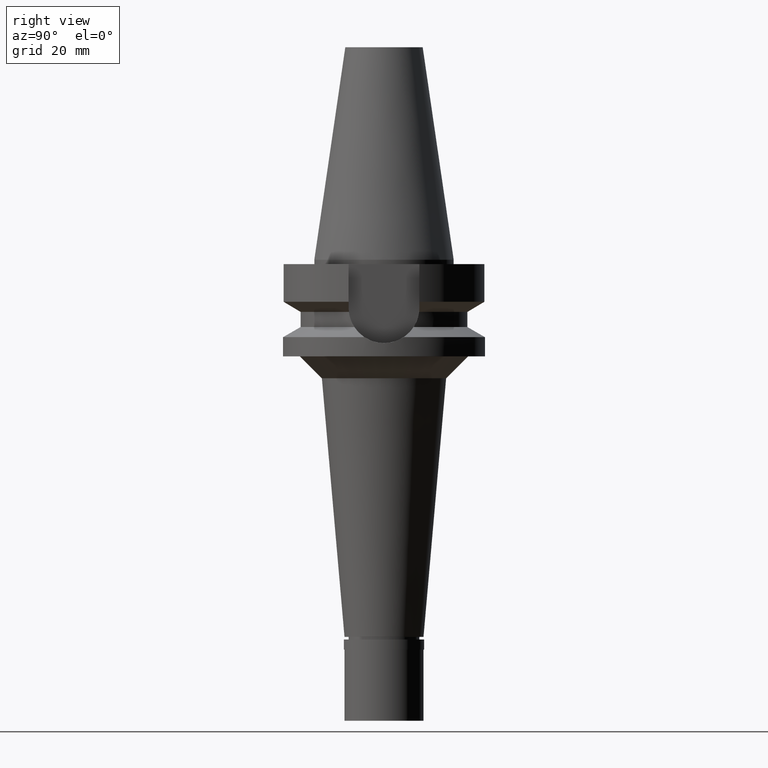
[diagram: clean part render]
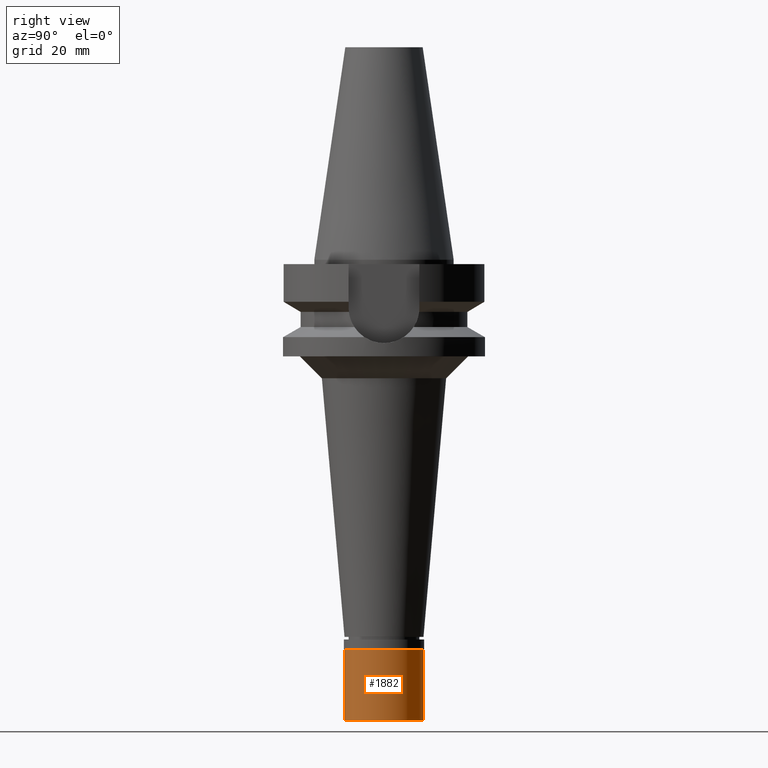
[diagram: same view with one face highlighted and labeled with its STEP entity id]
A machine part, right view. The second image highlights one B-rep face of the part: STEP entity #1882.
In plain terms, the highlighted cylindrical surface (partial cylindrical patch) has radius 9 mm, axis along (0, 0, 1).
Its self-contained STEP definition (entity closure, byte-faithful):
#181 = VERTEX_POINT ( 'NONE', #2691 ) ;
#248 = DIRECTION ( 'NONE',  ( 0.0000000000000000000, 0.0000000000000000000, 1.000000000000000000 ) ) ;
#386 = CARTESIAN_POINT ( 'NONE',  ( 0.0000000000000000000, 0.0000000000000000000, -2.299999999999999822 ) ) ;
#413 = CIRCLE ( 'NONE', #544, 9.000000000000000000 ) ;
#455 = AXIS2_PLACEMENT_3D ( 'NONE', #386, #2443, #2836 ) ;
#507 = ORIENTED_EDGE ( 'NONE', *, *, #2716, .F. ) ;
#544 = AXIS2_PLACEMENT_3D ( 'NONE', #2038, #248, #869 ) ;
#668 = LINE ( 'NONE', #1818, #1078 ) ;
#856 = EDGE_CURVE ( 'NONE', #1982, #181, #2348, .T. ) ;
#869 = DIRECTION ( 'NONE',  ( 0.0000000000000000000, -1.000000000000000000, 0.0000000000000000000 ) ) ;
#890 = ORIENTED_EDGE ( 'NONE', *, *, #1784, .T. ) ;
#1010 = CARTESIAN_POINT ( 'NONE',  ( 0.0000000000000000000, 9.000000000000000000, -2.299999999999999822 ) ) ;
#1040 = EDGE_CURVE ( 'NONE', #1958, #1982, #1256, .T. ) ;
#1055 = DIRECTION ( 'NONE',  ( 0.0000000000000000000, 0.0000000000000000000, 1.000000000000000000 ) ) ;
#1078 = VECTOR ( 'NONE', #1133, 1000.000000000000000 ) ;
#1103 = VERTEX_POINT ( 'NONE', #1184 ) ;
#1133 = DIRECTION ( 'NONE',  ( 0.0000000000000000000, 0.0000000000000000000, -1.000000000000000000 ) ) ;
#1182 = CARTESIAN_POINT ( 'NONE',  ( 0.0000000000000000000, -9.000000000000000000, -2.299999999999999822 ) ) ;
#1184 = CARTESIAN_POINT ( 'NONE',  ( 0.0000000000000000000, 9.000000000000000000, -18.50000000000000000 ) ) ;
#1256 = CIRCLE ( 'NONE', #455, 9.000000000000000000 ) ;
#1260 = AXIS2_PLACEMENT_3D ( 'NONE', #1275, #1055, #2447 ) ;
#1275 = CARTESIAN_POINT ( 'NONE',  ( 0.0000000000000000000, 0.0000000000000000000, -19.42500000000000071 ) ) ;
#1343 = ORIENTED_EDGE ( 'NONE', *, *, #1040, .T. ) ;
#1385 = DIRECTION ( 'NONE',  ( 0.0000000000000000000, 0.0000000000000000000, -1.000000000000000000 ) ) ;
#1439 = VECTOR ( 'NONE', #1385, 1000.000000000000000 ) ;
#1784 = EDGE_CURVE ( 'NONE', #181, #1103, #413, .T. ) ;
#1818 = CARTESIAN_POINT ( 'NONE',  ( 0.0000000000000000000, 9.000000000000000000, -2.299999999999999822 ) ) ;
#1882 = ADVANCED_FACE ( 'NONE', ( #2133 ), #1913, .T. ) ;
#1913 = CYLINDRICAL_SURFACE ( 'NONE', #1260, 9.000000000000000000 ) ;
#1948 = EDGE_LOOP ( 'NONE', ( #1343, #2962, #890, #507 ) ) ;
#1958 = VERTEX_POINT ( 'NONE', #1010 ) ;
#1982 = VERTEX_POINT ( 'NONE', #2603 ) ;
#2038 = CARTESIAN_POINT ( 'NONE',  ( 0.0000000000000000000, 0.0000000000000000000, -18.50000000000000000 ) ) ;
#2133 = FACE_OUTER_BOUND ( 'NONE', #1948, .T. ) ;
#2348 = LINE ( 'NONE', #1182, #1439 ) ;
#2443 = DIRECTION ( 'NONE',  ( 0.0000000000000000000, 0.0000000000000000000, -1.000000000000000000 ) ) ;
#2447 = DIRECTION ( 'NONE',  ( 0.0000000000000000000, 1.000000000000000000, 0.0000000000000000000 ) ) ;
#2603 = CARTESIAN_POINT ( 'NONE',  ( 0.0000000000000000000, -9.000000000000000000, -2.299999999999999822 ) ) ;
#2691 = CARTESIAN_POINT ( 'NONE',  ( 0.0000000000000000000, -9.000000000000000000, -18.50000000000000000 ) ) ;
#2716 = EDGE_CURVE ( 'NONE', #1958, #1103, #668, .T. ) ;
#2836 = DIRECTION ( 'NONE',  ( 0.0000000000000000000, 1.000000000000000000, 0.0000000000000000000 ) ) ;
#2962 = ORIENTED_EDGE ( 'NONE', *, *, #856, .T. ) ;